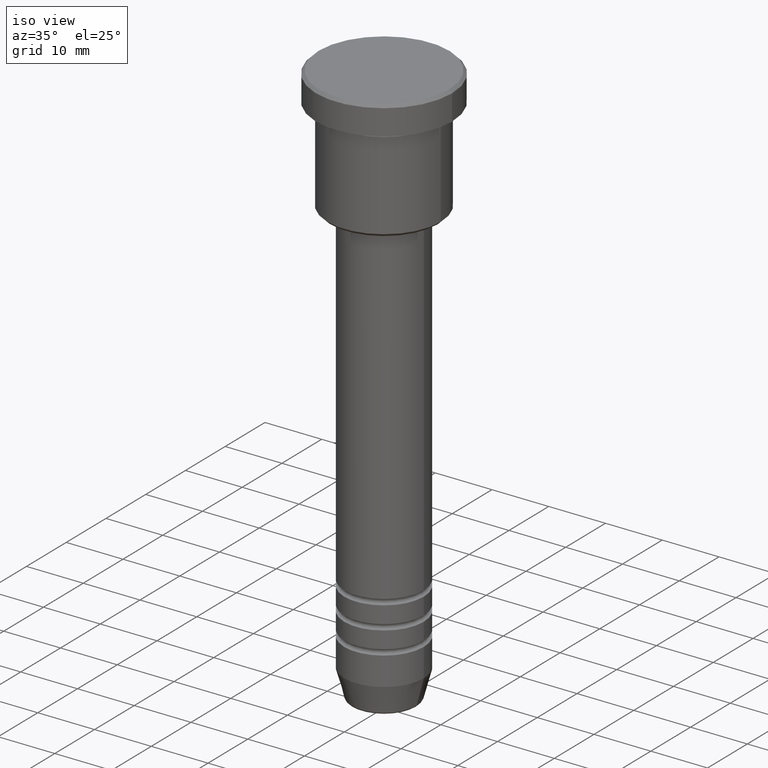
[diagram: clean part render]
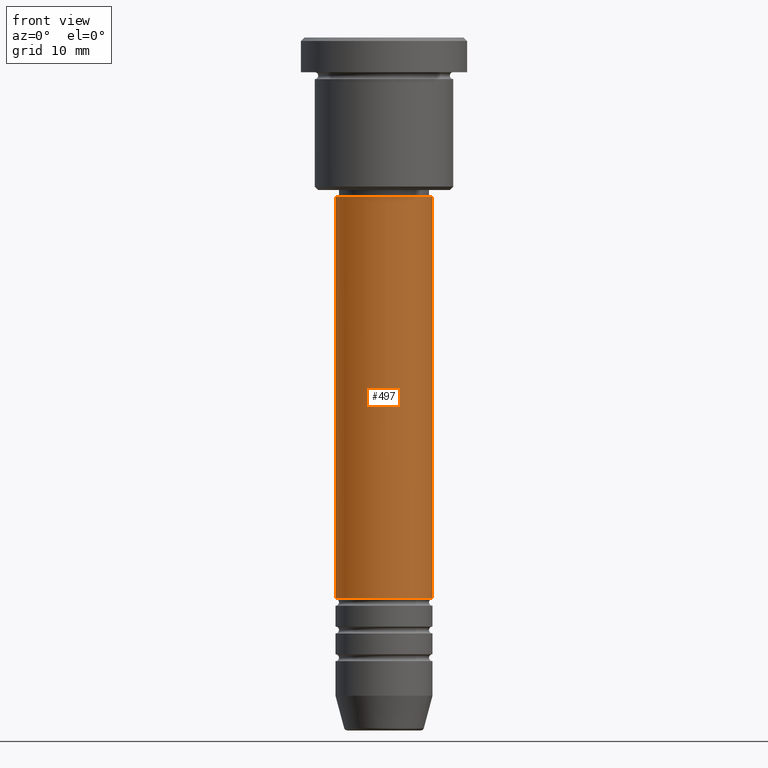
[diagram: tour spotlight — one face highlighted and labeled with its STEP entity id]
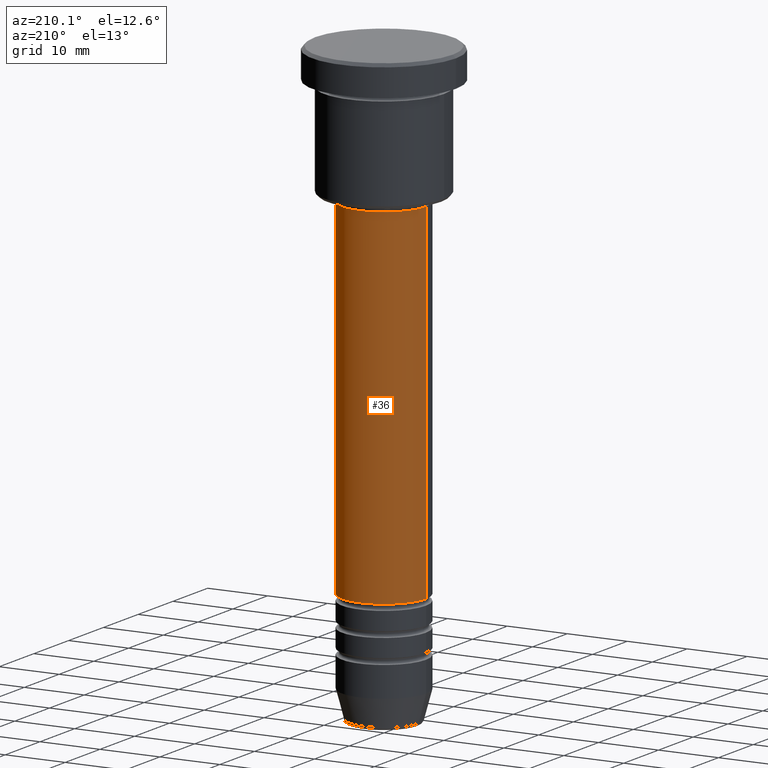
[diagram: tour spotlight — one face highlighted and labeled with its STEP entity id]
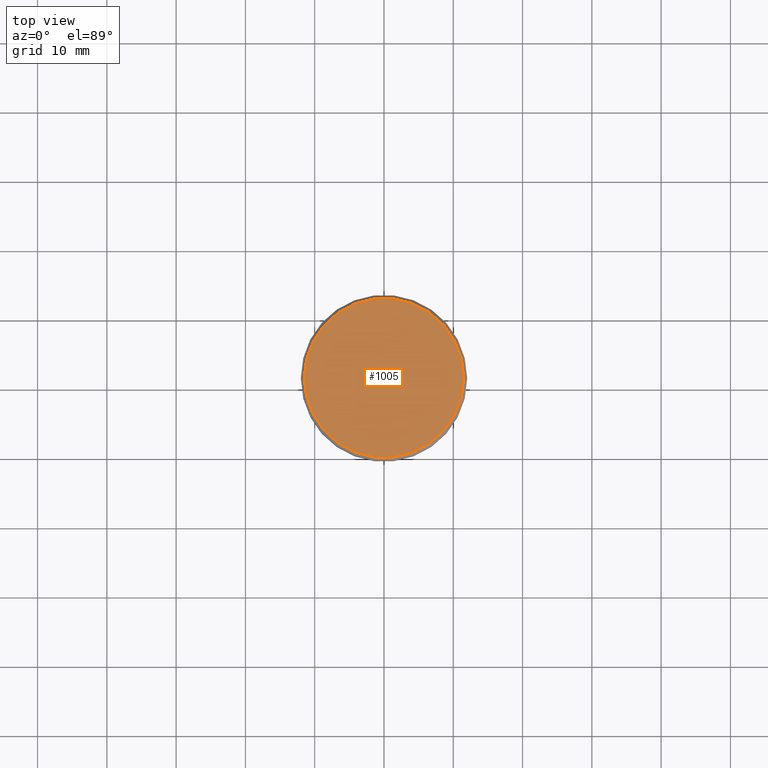
[diagram: tour spotlight — one face highlighted and labeled with its STEP entity id]
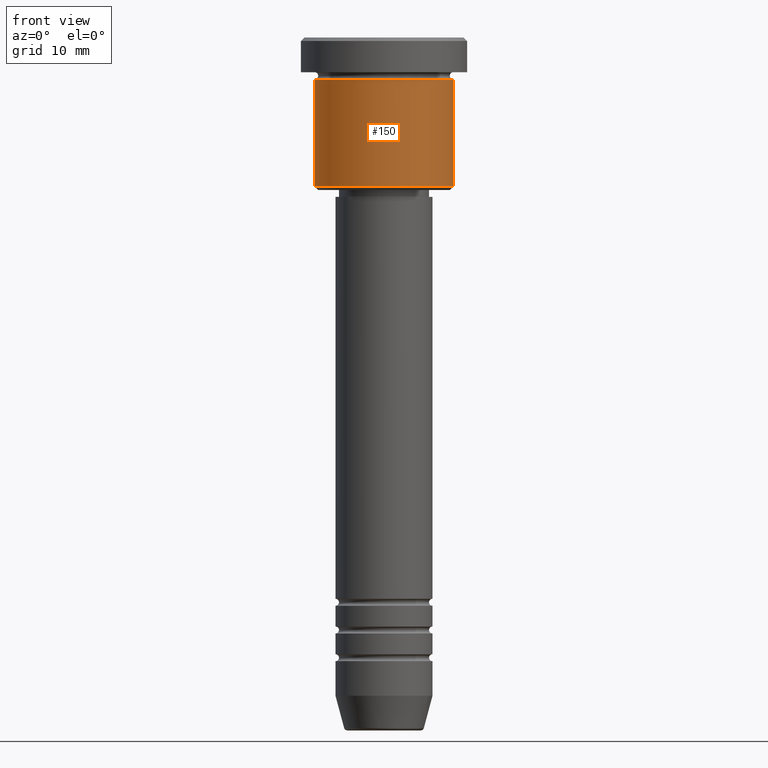
[diagram: tour spotlight — one face highlighted and labeled with its STEP entity id]
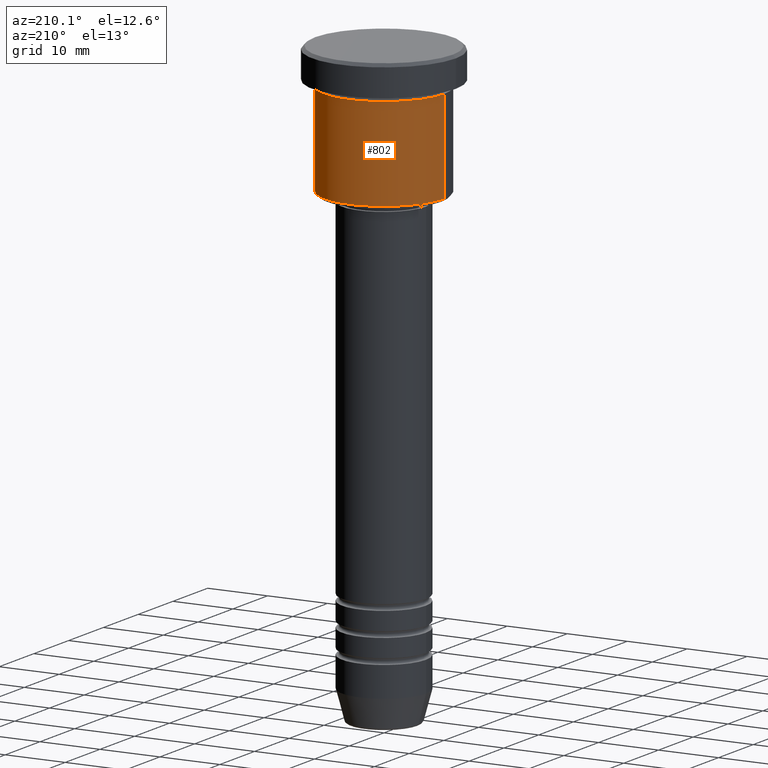
[diagram: tour spotlight — one face highlighted and labeled with its STEP entity id]
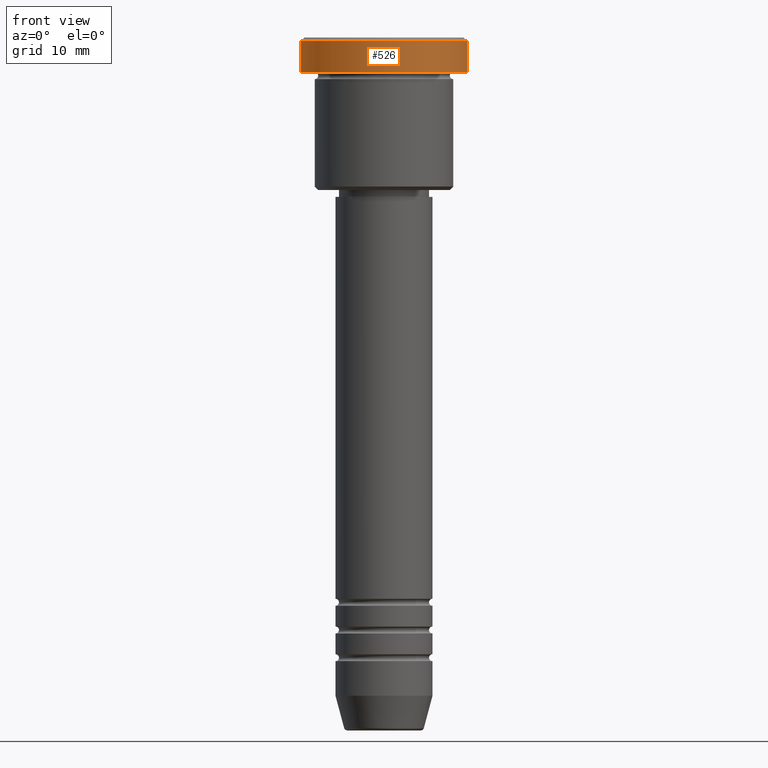
[diagram: tour spotlight — one face highlighted and labeled with its STEP entity id]
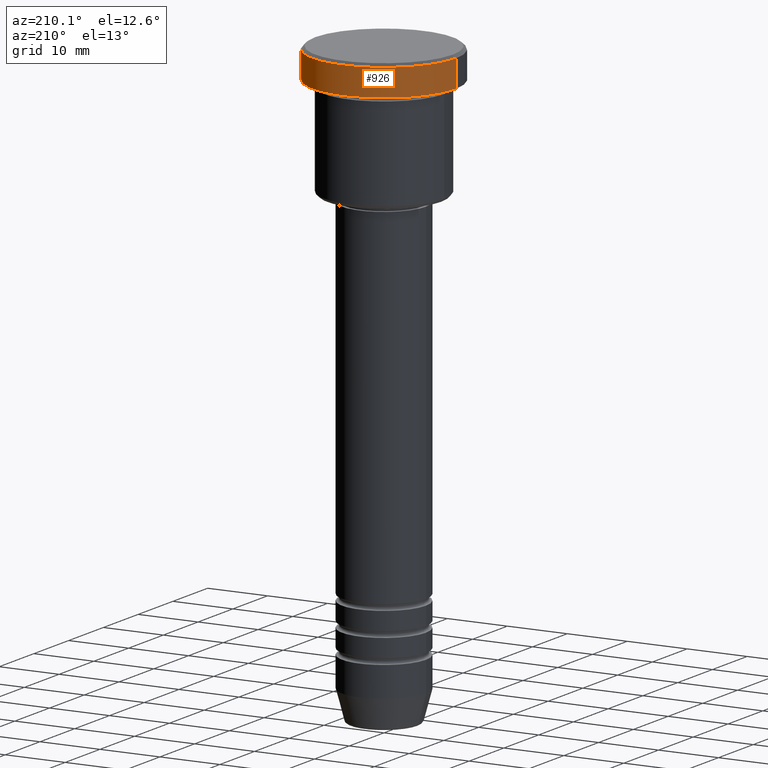
[diagram: tour spotlight — one face highlighted and labeled with its STEP entity id]
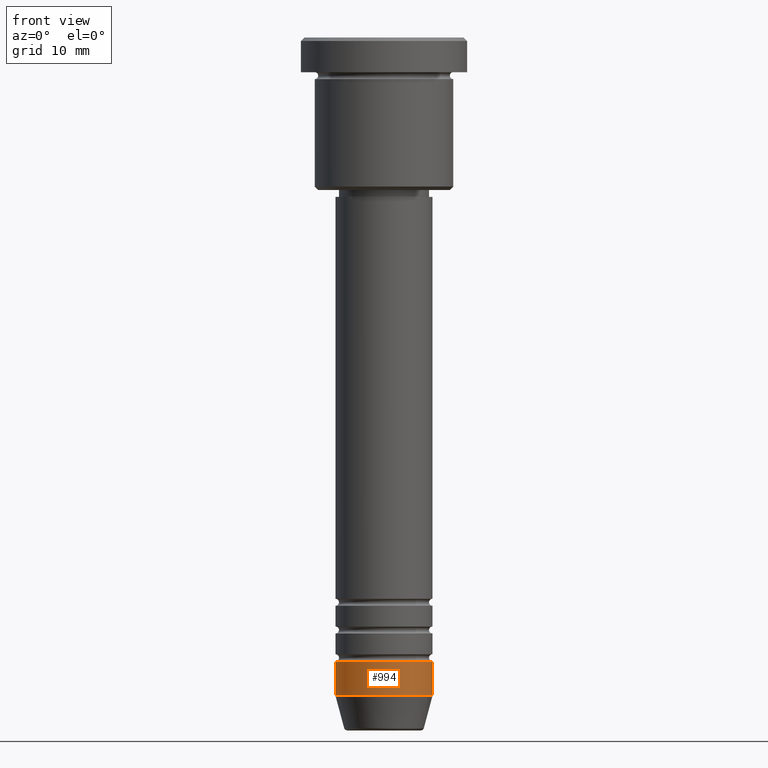
[diagram: tour spotlight — one face highlighted and labeled with its STEP entity id]
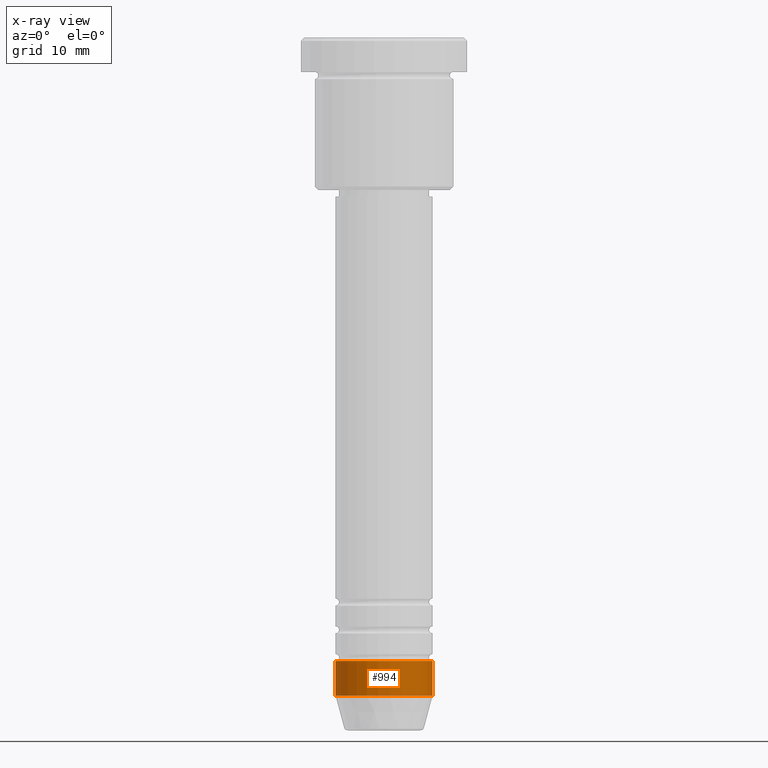
[diagram: x-ray of the same camera — body ghosted, this tour face saturated]
A machine part: a face-by-face anatomy tour. The part has 43 B-rep faces; the first image is the clean iso view, then the 8 largest visible faces are spotlighted one at a time (largest first), each with its STEP entity span.

Face 1 — front view, entity #497. In plain terms, the highlighted cylindrical surface (partial cylindrical patch) has radius 7 mm, axis along (-0, -0, 1).
Definition (entity closure, byte-faithful):
#47 = DIRECTION ( 'NONE',  ( -0.000000000000000000, -0.000000000000000000, 1.000000000000000000 ) ) ;
#168 = DIRECTION ( 'NONE',  ( 1.000000000000000000, 0.000000000000000000, 0.000000000000000000 ) ) ;
#188 = VERTEX_POINT ( 'NONE', #930 ) ;
#213 = VERTEX_POINT ( 'NONE', #629 ) ;
#235 = CARTESIAN_POINT ( 'NONE',  ( 0.000000000000000000, 0.000000000000000000, 0.000000000000000000 ) ) ;
#241 = AXIS2_PLACEMENT_3D ( 'NONE', #359, #548, #168 ) ;
#304 = EDGE_LOOP ( 'NONE', ( #1108, #928, #671, #897 ) ) ;
#332 = DIRECTION ( 'NONE',  ( 1.000000000000000000, 0.000000000000000000, 0.000000000000000000 ) ) ;
#351 = DIRECTION ( 'NONE',  ( -0.000000000000000000, -0.000000000000000000, 1.000000000000000000 ) ) ;
#359 = CARTESIAN_POINT ( 'NONE',  ( 0.000000000000000000, 0.000000000000000000, -80.99999999999998579 ) ) ;
#421 = CARTESIAN_POINT ( 'NONE',  ( 7.000000000000000888, 0.000000000000000000, 0.000000000000000000 ) ) ;
#425 = LINE ( 'NONE', #421, #695 ) ;
#427 = CIRCLE ( 'NONE', #755, 7.000000000000000888 ) ;
#457 = EDGE_CURVE ( 'NONE', #485, #600, #425, .T. ) ;
#485 = VERTEX_POINT ( 'NONE', #972 ) ;
#492 = EDGE_CURVE ( 'NONE', #188, #600, #427, .T. ) ;
#497 = ADVANCED_FACE ( 'NONE', ( #705 ), #514, .T. ) ;
#514 = CYLINDRICAL_SURFACE ( 'NONE', #736, 7.000000000000000888 ) ;
#544 = EDGE_CURVE ( 'NONE', #213, #188, #612, .T. ) ;
#548 = DIRECTION ( 'NONE',  ( -0.000000000000000000, -0.000000000000000000, 1.000000000000000000 ) ) ;
#600 = VERTEX_POINT ( 'NONE', #1064 ) ;
#601 = CIRCLE ( 'NONE', #241, 7.000000000000000888 ) ;
#608 = DIRECTION ( 'NONE',  ( -0.000000000000000000, -0.000000000000000000, 1.000000000000000000 ) ) ;
#612 = LINE ( 'NONE', #1059, #1130 ) ;
#629 = CARTESIAN_POINT ( 'NONE',  ( -7.000000000000000888, 8.572527594031474176E-16, -80.99999999999998579 ) ) ;
#654 = EDGE_CURVE ( 'NONE', #213, #485, #601, .T. ) ;
#671 = ORIENTED_EDGE ( 'NONE', *, *, #457, .T. ) ;
#695 = VECTOR ( 'NONE', #351, 1000.000000000000000 ) ;
#705 = FACE_OUTER_BOUND ( 'NONE', #304, .T. ) ;
#736 = AXIS2_PLACEMENT_3D ( 'NONE', #235, #608, #875 ) ;
#755 = AXIS2_PLACEMENT_3D ( 'NONE', #788, #47, #332 ) ;
#788 = CARTESIAN_POINT ( 'NONE',  ( 0.000000000000000000, 0.000000000000000000, -23.00000000000000711 ) ) ;
#875 = DIRECTION ( 'NONE',  ( 1.000000000000000000, 0.000000000000000000, 0.000000000000000000 ) ) ;
#897 = ORIENTED_EDGE ( 'NONE', *, *, #492, .F. ) ;
#928 = ORIENTED_EDGE ( 'NONE', *, *, #654, .T. ) ;
#930 = CARTESIAN_POINT ( 'NONE',  ( -7.000000000000000888, 8.572527594031474176E-16, -23.00000000000000711 ) ) ;
#972 = CARTESIAN_POINT ( 'NONE',  ( 7.000000000000000888, 0.000000000000000000, -80.99999999999998579 ) ) ;
#1055 = DIRECTION ( 'NONE',  ( -0.000000000000000000, -0.000000000000000000, 1.000000000000000000 ) ) ;
#1059 = CARTESIAN_POINT ( 'NONE',  ( -7.000000000000000888, 8.572527594031474176E-16, 0.000000000000000000 ) ) ;
#1064 = CARTESIAN_POINT ( 'NONE',  ( 7.000000000000000888, 0.000000000000000000, -23.00000000000000711 ) ) ;
#1108 = ORIENTED_EDGE ( 'NONE', *, *, #544, .F. ) ;
#1130 = VECTOR ( 'NONE', #1055, 1000.000000000000000 ) ;

Face 2 — auxiliary view, entity #36. In plain terms, the highlighted cylindrical surface (partial cylindrical patch) has radius 7 mm, axis along (-0, -0, 1).
Definition (entity closure, byte-faithful):
#16 = ORIENTED_EDGE ( 'NONE', *, *, #544, .T. ) ;
#36 = ADVANCED_FACE ( 'NONE', ( #155 ), #170, .T. ) ;
#121 = EDGE_LOOP ( 'NONE', ( #868, #16, #699, #291 ) ) ;
#155 = FACE_OUTER_BOUND ( 'NONE', #121, .T. ) ;
#170 = CYLINDRICAL_SURFACE ( 'NONE', #1015, 7.000000000000000888 ) ;
#173 = DIRECTION ( 'NONE',  ( 1.000000000000000000, 0.000000000000000000, 0.000000000000000000 ) ) ;
#188 = VERTEX_POINT ( 'NONE', #930 ) ;
#213 = VERTEX_POINT ( 'NONE', #629 ) ;
#291 = ORIENTED_EDGE ( 'NONE', *, *, #457, .F. ) ;
#346 = EDGE_CURVE ( 'NONE', #485, #213, #790, .T. ) ;
#351 = DIRECTION ( 'NONE',  ( -0.000000000000000000, -0.000000000000000000, 1.000000000000000000 ) ) ;
#352 = CARTESIAN_POINT ( 'NONE',  ( 0.000000000000000000, 0.000000000000000000, 0.000000000000000000 ) ) ;
#421 = CARTESIAN_POINT ( 'NONE',  ( 7.000000000000000888, 0.000000000000000000, 0.000000000000000000 ) ) ;
#425 = LINE ( 'NONE', #421, #695 ) ;
#457 = EDGE_CURVE ( 'NONE', #485, #600, #425, .T. ) ;
#485 = VERTEX_POINT ( 'NONE', #972 ) ;
#544 = EDGE_CURVE ( 'NONE', #213, #188, #612, .T. ) ;
#600 = VERTEX_POINT ( 'NONE', #1064 ) ;
#612 = LINE ( 'NONE', #1059, #1130 ) ;
#617 = DIRECTION ( 'NONE',  ( -0.000000000000000000, -0.000000000000000000, 1.000000000000000000 ) ) ;
#628 = DIRECTION ( 'NONE',  ( -0.000000000000000000, -0.000000000000000000, 1.000000000000000000 ) ) ;
#629 = CARTESIAN_POINT ( 'NONE',  ( -7.000000000000000888, 8.572527594031474176E-16, -80.99999999999998579 ) ) ;
#684 = DIRECTION ( 'NONE',  ( -0.000000000000000000, -0.000000000000000000, 1.000000000000000000 ) ) ;
#695 = VECTOR ( 'NONE', #351, 1000.000000000000000 ) ;
#696 = AXIS2_PLACEMENT_3D ( 'NONE', #1166, #628, #173 ) ;
#699 = ORIENTED_EDGE ( 'NONE', *, *, #740, .F. ) ;
#740 = EDGE_CURVE ( 'NONE', #600, #188, #1114, .T. ) ;
#766 = DIRECTION ( 'NONE',  ( 1.000000000000000000, 0.000000000000000000, 0.000000000000000000 ) ) ;
#770 = CARTESIAN_POINT ( 'NONE',  ( 0.000000000000000000, 0.000000000000000000, -80.99999999999998579 ) ) ;
#790 = CIRCLE ( 'NONE', #888, 7.000000000000000888 ) ;
#868 = ORIENTED_EDGE ( 'NONE', *, *, #346, .T. ) ;
#888 = AXIS2_PLACEMENT_3D ( 'NONE', #770, #684, #1031 ) ;
#930 = CARTESIAN_POINT ( 'NONE',  ( -7.000000000000000888, 8.572527594031474176E-16, -23.00000000000000711 ) ) ;
#972 = CARTESIAN_POINT ( 'NONE',  ( 7.000000000000000888, 0.000000000000000000, -80.99999999999998579 ) ) ;
#1015 = AXIS2_PLACEMENT_3D ( 'NONE', #352, #617, #766 ) ;
#1031 = DIRECTION ( 'NONE',  ( 1.000000000000000000, 0.000000000000000000, 0.000000000000000000 ) ) ;
#1055 = DIRECTION ( 'NONE',  ( -0.000000000000000000, -0.000000000000000000, 1.000000000000000000 ) ) ;
#1059 = CARTESIAN_POINT ( 'NONE',  ( -7.000000000000000888, 8.572527594031474176E-16, 0.000000000000000000 ) ) ;
#1064 = CARTESIAN_POINT ( 'NONE',  ( 7.000000000000000888, 0.000000000000000000, -23.00000000000000711 ) ) ;
#1114 = CIRCLE ( 'NONE', #696, 7.000000000000000888 ) ;
#1130 = VECTOR ( 'NONE', #1055, 1000.000000000000000 ) ;
#1166 = CARTESIAN_POINT ( 'NONE',  ( 0.000000000000000000, 0.000000000000000000, -23.00000000000000711 ) ) ;

Face 3 — top view, entity #1005. In plain terms, the highlighted planar face has unit normal (0, -0, 1).
Definition (entity closure, byte-faithful):
#17 = CARTESIAN_POINT ( 'NONE',  ( -11.49999999999998046, 0.000000000000000000, 0.000000000000000000 ) ) ;
#26 = ORIENTED_EDGE ( 'NONE', *, *, #474, .T. ) ;
#43 = CIRCLE ( 'NONE', #80, 11.49999999999998046 ) ;
#66 = CARTESIAN_POINT ( 'NONE',  ( 0.000000000000000000, 0.000000000000000000, 0.000000000000000000 ) ) ;
#80 = AXIS2_PLACEMENT_3D ( 'NONE', #1008, #1099, #642 ) ;
#238 = DIRECTION ( 'NONE',  ( 1.000000000000000000, 0.000000000000000000, 0.000000000000000000 ) ) ;
#239 = DIRECTION ( 'NONE',  ( 1.000000000000000000, 0.000000000000000000, 0.000000000000000000 ) ) ;
#300 = AXIS2_PLACEMENT_3D ( 'NONE', #66, #1048, #239 ) ;
#416 = FACE_OUTER_BOUND ( 'NONE', #513, .T. ) ;
#474 = EDGE_CURVE ( 'NONE', #650, #1181, #677, .T. ) ;
#513 = EDGE_LOOP ( 'NONE', ( #704, #26 ) ) ;
#596 = CARTESIAN_POINT ( 'NONE',  ( 0.000000000000000000, 0.000000000000000000, 0.000000000000000000 ) ) ;
#610 = DIRECTION ( 'NONE',  ( 0.000000000000000000, -0.000000000000000000, 1.000000000000000000 ) ) ;
#642 = DIRECTION ( 'NONE',  ( 1.000000000000000000, 0.000000000000000000, 0.000000000000000000 ) ) ;
#650 = VERTEX_POINT ( 'NONE', #995 ) ;
#677 = CIRCLE ( 'NONE', #300, 11.49999999999998046 ) ;
#704 = ORIENTED_EDGE ( 'NONE', *, *, #717, .T. ) ;
#717 = EDGE_CURVE ( 'NONE', #1181, #650, #43, .T. ) ;
#718 = AXIS2_PLACEMENT_3D ( 'NONE', #596, #610, #238 ) ;
#779 = PLANE ( 'NONE',  #718 ) ;
#995 = CARTESIAN_POINT ( 'NONE',  ( 11.49999999999998046, 1.438959988998138582E-15, 0.000000000000000000 ) ) ;
#1005 = ADVANCED_FACE ( 'NONE', ( #416 ), #779, .T. ) ;
#1008 = CARTESIAN_POINT ( 'NONE',  ( 0.000000000000000000, 0.000000000000000000, 0.000000000000000000 ) ) ;
#1048 = DIRECTION ( 'NONE',  ( -0.000000000000000000, -0.000000000000000000, 1.000000000000000000 ) ) ;
#1099 = DIRECTION ( 'NONE',  ( -0.000000000000000000, -0.000000000000000000, 1.000000000000000000 ) ) ;
#1181 = VERTEX_POINT ( 'NONE', #17 ) ;

Face 4 — front view, entity #150. In plain terms, the highlighted cylindrical surface (partial cylindrical patch) has radius 10 mm, axis along (-0, -0, 1).
Definition (entity closure, byte-faithful):
#2 = CARTESIAN_POINT ( 'NONE',  ( 0.000000000000000000, 0.000000000000000000, -6.000000000000000000 ) ) ;
#68 = CARTESIAN_POINT ( 'NONE',  ( -10.00000000000000000, 1.224646799147353256E-15, -6.000000000000000000 ) ) ;
#73 = LINE ( 'NONE', #820, #499 ) ;
#81 = CARTESIAN_POINT ( 'NONE',  ( 0.000000000000000000, 0.000000000000000000, 0.000000000000000000 ) ) ;
#82 = VECTOR ( 'NONE', #172, 1000.000000000000000 ) ;
#103 = VERTEX_POINT ( 'NONE', #68 ) ;
#108 = DIRECTION ( 'NONE',  ( -1.000000000000000000, 0.000000000000000000, 0.000000000000000000 ) ) ;
#118 = CARTESIAN_POINT ( 'NONE',  ( 9.999999999999998224, 0.000000000000000000, -21.50000000000000000 ) ) ;
#141 = AXIS2_PLACEMENT_3D ( 'NONE', #648, #1009, #108 ) ;
#150 = ADVANCED_FACE ( 'NONE', ( #442 ), #643, .T. ) ;
#157 = EDGE_CURVE ( 'NONE', #800, #724, #73, .T. ) ;
#172 = DIRECTION ( 'NONE',  ( -0.000000000000000000, -0.000000000000000000, 1.000000000000000000 ) ) ;
#189 = CARTESIAN_POINT ( 'NONE',  ( 10.00000000000000000, 0.000000000000000000, -6.000000000000000000 ) ) ;
#190 = DIRECTION ( 'NONE',  ( -0.000000000000000000, -0.000000000000000000, 1.000000000000000000 ) ) ;
#207 = ORIENTED_EDGE ( 'NONE', *, *, #1141, .F. ) ;
#263 = ORIENTED_EDGE ( 'NONE', *, *, #273, .F. ) ;
#273 = EDGE_CURVE ( 'NONE', #103, #724, #482, .T. ) ;
#278 = EDGE_CURVE ( 'NONE', #808, #800, #976, .T. ) ;
#299 = AXIS2_PLACEMENT_3D ( 'NONE', #2, #824, #381 ) ;
#325 = ORIENTED_EDGE ( 'NONE', *, *, #278, .T. ) ;
#381 = DIRECTION ( 'NONE',  ( 1.000000000000000000, 0.000000000000000000, 0.000000000000000000 ) ) ;
#440 = LINE ( 'NONE', #809, #82 ) ;
#442 = FACE_OUTER_BOUND ( 'NONE', #523, .T. ) ;
#451 = DIRECTION ( 'NONE',  ( -0.000000000000000000, -0.000000000000000000, 1.000000000000000000 ) ) ;
#482 = CIRCLE ( 'NONE', #299, 10.00000000000000000 ) ;
#499 = VECTOR ( 'NONE', #190, 1000.000000000000000 ) ;
#523 = EDGE_LOOP ( 'NONE', ( #207, #325, #545, #263 ) ) ;
#545 = ORIENTED_EDGE ( 'NONE', *, *, #157, .T. ) ;
#643 = CYLINDRICAL_SURFACE ( 'NONE', #1068, 9.999999999999998224 ) ;
#648 = CARTESIAN_POINT ( 'NONE',  ( 0.000000000000000000, 0.000000000000000000, -21.50000000000000000 ) ) ;
#724 = VERTEX_POINT ( 'NONE', #189 ) ;
#800 = VERTEX_POINT ( 'NONE', #118 ) ;
#808 = VERTEX_POINT ( 'NONE', #1022 ) ;
#809 = CARTESIAN_POINT ( 'NONE',  ( -9.999999999999998224, 1.224646799147353059E-15, 0.000000000000000000 ) ) ;
#820 = CARTESIAN_POINT ( 'NONE',  ( 9.999999999999998224, 0.000000000000000000, 0.000000000000000000 ) ) ;
#824 = DIRECTION ( 'NONE',  ( -0.000000000000000000, -0.000000000000000000, 1.000000000000000000 ) ) ;
#976 = CIRCLE ( 'NONE', #141, 9.999999999999998224 ) ;
#1003 = DIRECTION ( 'NONE',  ( 1.000000000000000000, 0.000000000000000000, 0.000000000000000000 ) ) ;
#1009 = DIRECTION ( 'NONE',  ( -0.000000000000000000, -0.000000000000000000, 1.000000000000000000 ) ) ;
#1022 = CARTESIAN_POINT ( 'NONE',  ( -9.999999999999998224, 1.224646799147353059E-15, -21.50000000000000000 ) ) ;
#1068 = AXIS2_PLACEMENT_3D ( 'NONE', #81, #451, #1003 ) ;
#1141 = EDGE_CURVE ( 'NONE', #808, #103, #440, .T. ) ;

Face 5 — auxiliary view, entity #802. In plain terms, the highlighted cylindrical surface (partial cylindrical patch) has radius 10 mm, axis along (-0, -0, 1).
Definition (entity closure, byte-faithful):
#68 = CARTESIAN_POINT ( 'NONE',  ( -10.00000000000000000, 1.224646799147353256E-15, -6.000000000000000000 ) ) ;
#73 = LINE ( 'NONE', #820, #499 ) ;
#82 = VECTOR ( 'NONE', #172, 1000.000000000000000 ) ;
#83 = EDGE_CURVE ( 'NONE', #800, #808, #1145, .T. ) ;
#103 = VERTEX_POINT ( 'NONE', #68 ) ;
#118 = CARTESIAN_POINT ( 'NONE',  ( 9.999999999999998224, 0.000000000000000000, -21.50000000000000000 ) ) ;
#157 = EDGE_CURVE ( 'NONE', #800, #724, #73, .T. ) ;
#172 = DIRECTION ( 'NONE',  ( -0.000000000000000000, -0.000000000000000000, 1.000000000000000000 ) ) ;
#179 = ORIENTED_EDGE ( 'NONE', *, *, #157, .F. ) ;
#189 = CARTESIAN_POINT ( 'NONE',  ( 10.00000000000000000, 0.000000000000000000, -6.000000000000000000 ) ) ;
#190 = DIRECTION ( 'NONE',  ( -0.000000000000000000, -0.000000000000000000, 1.000000000000000000 ) ) ;
#198 = EDGE_CURVE ( 'NONE', #724, #103, #515, .T. ) ;
#226 = DIRECTION ( 'NONE',  ( -1.000000000000000000, 0.000000000000000000, 0.000000000000000000 ) ) ;
#270 = DIRECTION ( 'NONE',  ( 1.000000000000000000, 0.000000000000000000, 0.000000000000000000 ) ) ;
#314 = CARTESIAN_POINT ( 'NONE',  ( 0.000000000000000000, 0.000000000000000000, -21.50000000000000000 ) ) ;
#440 = LINE ( 'NONE', #809, #82 ) ;
#465 = AXIS2_PLACEMENT_3D ( 'NONE', #950, #493, #472 ) ;
#472 = DIRECTION ( 'NONE',  ( 1.000000000000000000, 0.000000000000000000, 0.000000000000000000 ) ) ;
#493 = DIRECTION ( 'NONE',  ( -0.000000000000000000, -0.000000000000000000, 1.000000000000000000 ) ) ;
#499 = VECTOR ( 'NONE', #190, 1000.000000000000000 ) ;
#515 = CIRCLE ( 'NONE', #616, 10.00000000000000000 ) ;
#613 = EDGE_LOOP ( 'NONE', ( #639, #838, #656, #179 ) ) ;
#616 = AXIS2_PLACEMENT_3D ( 'NONE', #733, #1169, #270 ) ;
#639 = ORIENTED_EDGE ( 'NONE', *, *, #83, .T. ) ;
#656 = ORIENTED_EDGE ( 'NONE', *, *, #198, .F. ) ;
#661 = FACE_OUTER_BOUND ( 'NONE', #613, .T. ) ;
#692 = AXIS2_PLACEMENT_3D ( 'NONE', #314, #1131, #226 ) ;
#724 = VERTEX_POINT ( 'NONE', #189 ) ;
#733 = CARTESIAN_POINT ( 'NONE',  ( 0.000000000000000000, 0.000000000000000000, -6.000000000000000000 ) ) ;
#800 = VERTEX_POINT ( 'NONE', #118 ) ;
#802 = ADVANCED_FACE ( 'NONE', ( #661 ), #1123, .T. ) ;
#808 = VERTEX_POINT ( 'NONE', #1022 ) ;
#809 = CARTESIAN_POINT ( 'NONE',  ( -9.999999999999998224, 1.224646799147353059E-15, 0.000000000000000000 ) ) ;
#820 = CARTESIAN_POINT ( 'NONE',  ( 9.999999999999998224, 0.000000000000000000, 0.000000000000000000 ) ) ;
#838 = ORIENTED_EDGE ( 'NONE', *, *, #1141, .T. ) ;
#950 = CARTESIAN_POINT ( 'NONE',  ( 0.000000000000000000, 0.000000000000000000, 0.000000000000000000 ) ) ;
#1022 = CARTESIAN_POINT ( 'NONE',  ( -9.999999999999998224, 1.224646799147353059E-15, -21.50000000000000000 ) ) ;
#1123 = CYLINDRICAL_SURFACE ( 'NONE', #465, 9.999999999999998224 ) ;
#1131 = DIRECTION ( 'NONE',  ( -0.000000000000000000, -0.000000000000000000, 1.000000000000000000 ) ) ;
#1141 = EDGE_CURVE ( 'NONE', #808, #103, #440, .T. ) ;
#1145 = CIRCLE ( 'NONE', #692, 9.999999999999998224 ) ;
#1169 = DIRECTION ( 'NONE',  ( -0.000000000000000000, -0.000000000000000000, 1.000000000000000000 ) ) ;

Face 6 — front view, entity #526. In plain terms, the highlighted cylindrical surface (partial cylindrical patch) has radius 12 mm, axis along (-0, -0, 1).
Definition (entity closure, byte-faithful):
#40 = VECTOR ( 'NONE', #969, 1000.000000000000000 ) ;
#57 = DIRECTION ( 'NONE',  ( 0.000000000000000000, 0.000000000000000000, -1.000000000000000000 ) ) ;
#65 = EDGE_CURVE ( 'NONE', #804, #635, #892, .T. ) ;
#76 = VECTOR ( 'NONE', #1125, 1000.000000000000000 ) ;
#140 = CARTESIAN_POINT ( 'NONE',  ( 0.000000000000000000, 0.000000000000000000, 0.000000000000000000 ) ) ;
#180 = CIRCLE ( 'NONE', #678, 12.00000000000000000 ) ;
#181 = CARTESIAN_POINT ( 'NONE',  ( 0.000000000000000000, 0.000000000000000000, -5.000000000000000000 ) ) ;
#247 = LINE ( 'NONE', #798, #40 ) ;
#281 = DIRECTION ( 'NONE',  ( -0.000000000000000000, -0.000000000000000000, 1.000000000000000000 ) ) ;
#310 = VERTEX_POINT ( 'NONE', #1119 ) ;
#320 = ORIENTED_EDGE ( 'NONE', *, *, #597, .F. ) ;
#322 = AXIS2_PLACEMENT_3D ( 'NONE', #409, #57, #898 ) ;
#378 = CARTESIAN_POINT ( 'NONE',  ( 12.00000000000000000, 0.000000000000000000, -0.5000000000000196509 ) ) ;
#409 = CARTESIAN_POINT ( 'NONE',  ( 0.000000000000000000, 0.000000000000000000, -0.5000000000000196509 ) ) ;
#419 = DIRECTION ( 'NONE',  ( -0.000000000000000000, -0.000000000000000000, 1.000000000000000000 ) ) ;
#469 = ORIENTED_EDGE ( 'NONE', *, *, #957, .T. ) ;
#510 = FACE_OUTER_BOUND ( 'NONE', #586, .T. ) ;
#526 = ADVANCED_FACE ( 'NONE', ( #510 ), #961, .T. ) ;
#527 = CARTESIAN_POINT ( 'NONE',  ( 12.00000000000000000, 0.000000000000000000, 0.000000000000000000 ) ) ;
#571 = CARTESIAN_POINT ( 'NONE',  ( -12.00000000000000000, 1.469576158976823947E-15, -0.5000000000000196509 ) ) ;
#586 = EDGE_LOOP ( 'NONE', ( #320, #954, #659, #469 ) ) ;
#597 = EDGE_CURVE ( 'NONE', #310, #797, #247, .T. ) ;
#635 = VERTEX_POINT ( 'NONE', #378 ) ;
#659 = ORIENTED_EDGE ( 'NONE', *, *, #65, .T. ) ;
#678 = AXIS2_PLACEMENT_3D ( 'NONE', #181, #281, #923 ) ;
#687 = EDGE_CURVE ( 'NONE', #310, #804, #180, .T. ) ;
#689 = DIRECTION ( 'NONE',  ( 1.000000000000000000, 0.000000000000000000, 0.000000000000000000 ) ) ;
#797 = VERTEX_POINT ( 'NONE', #571 ) ;
#798 = CARTESIAN_POINT ( 'NONE',  ( -12.00000000000000000, 1.469576158976823947E-15, 0.000000000000000000 ) ) ;
#804 = VERTEX_POINT ( 'NONE', #943 ) ;
#853 = AXIS2_PLACEMENT_3D ( 'NONE', #140, #419, #689 ) ;
#892 = LINE ( 'NONE', #527, #76 ) ;
#898 = DIRECTION ( 'NONE',  ( 1.000000000000000000, 0.000000000000000000, 0.000000000000000000 ) ) ;
#923 = DIRECTION ( 'NONE',  ( 1.000000000000000000, 0.000000000000000000, 0.000000000000000000 ) ) ;
#943 = CARTESIAN_POINT ( 'NONE',  ( 12.00000000000000000, 0.000000000000000000, -5.000000000000000000 ) ) ;
#954 = ORIENTED_EDGE ( 'NONE', *, *, #687, .T. ) ;
#957 = EDGE_CURVE ( 'NONE', #635, #797, #1017, .T. ) ;
#961 = CYLINDRICAL_SURFACE ( 'NONE', #853, 12.00000000000000000 ) ;
#969 = DIRECTION ( 'NONE',  ( -0.000000000000000000, -0.000000000000000000, 1.000000000000000000 ) ) ;
#1017 = CIRCLE ( 'NONE', #322, 12.00000000000000000 ) ;
#1119 = CARTESIAN_POINT ( 'NONE',  ( -12.00000000000000000, 1.469576158976823947E-15, -5.000000000000000000 ) ) ;
#1125 = DIRECTION ( 'NONE',  ( -0.000000000000000000, -0.000000000000000000, 1.000000000000000000 ) ) ;

Face 7 — auxiliary view, entity #926. In plain terms, the highlighted cylindrical surface (partial cylindrical patch) has radius 12 mm, axis along (-0, -0, 1).
Definition (entity closure, byte-faithful):
#3 = AXIS2_PLACEMENT_3D ( 'NONE', #975, #968, #160 ) ;
#4 = AXIS2_PLACEMENT_3D ( 'NONE', #420, #782, #886 ) ;
#40 = VECTOR ( 'NONE', #969, 1000.000000000000000 ) ;
#45 = DIRECTION ( 'NONE',  ( 1.000000000000000000, 0.000000000000000000, 0.000000000000000000 ) ) ;
#51 = DIRECTION ( 'NONE',  ( -0.000000000000000000, -0.000000000000000000, 1.000000000000000000 ) ) ;
#65 = EDGE_CURVE ( 'NONE', #804, #635, #892, .T. ) ;
#76 = VECTOR ( 'NONE', #1125, 1000.000000000000000 ) ;
#89 = EDGE_LOOP ( 'NONE', ( #456, #109, #726, #117 ) ) ;
#109 = ORIENTED_EDGE ( 'NONE', *, *, #597, .T. ) ;
#117 = ORIENTED_EDGE ( 'NONE', *, *, #65, .F. ) ;
#160 = DIRECTION ( 'NONE',  ( 1.000000000000000000, 0.000000000000000000, 0.000000000000000000 ) ) ;
#247 = LINE ( 'NONE', #798, #40 ) ;
#310 = VERTEX_POINT ( 'NONE', #1119 ) ;
#378 = CARTESIAN_POINT ( 'NONE',  ( 12.00000000000000000, 0.000000000000000000, -0.5000000000000196509 ) ) ;
#420 = CARTESIAN_POINT ( 'NONE',  ( 0.000000000000000000, 0.000000000000000000, -0.5000000000000196509 ) ) ;
#456 = ORIENTED_EDGE ( 'NONE', *, *, #952, .T. ) ;
#509 = CARTESIAN_POINT ( 'NONE',  ( 0.000000000000000000, 0.000000000000000000, 0.000000000000000000 ) ) ;
#518 = CIRCLE ( 'NONE', #3, 12.00000000000000000 ) ;
#520 = CYLINDRICAL_SURFACE ( 'NONE', #949, 12.00000000000000000 ) ;
#527 = CARTESIAN_POINT ( 'NONE',  ( 12.00000000000000000, 0.000000000000000000, 0.000000000000000000 ) ) ;
#571 = CARTESIAN_POINT ( 'NONE',  ( -12.00000000000000000, 1.469576158976823947E-15, -0.5000000000000196509 ) ) ;
#597 = EDGE_CURVE ( 'NONE', #310, #797, #247, .T. ) ;
#635 = VERTEX_POINT ( 'NONE', #378 ) ;
#726 = ORIENTED_EDGE ( 'NONE', *, *, #1029, .T. ) ;
#741 = CIRCLE ( 'NONE', #4, 12.00000000000000000 ) ;
#782 = DIRECTION ( 'NONE',  ( 0.000000000000000000, 0.000000000000000000, -1.000000000000000000 ) ) ;
#797 = VERTEX_POINT ( 'NONE', #571 ) ;
#798 = CARTESIAN_POINT ( 'NONE',  ( -12.00000000000000000, 1.469576158976823947E-15, 0.000000000000000000 ) ) ;
#804 = VERTEX_POINT ( 'NONE', #943 ) ;
#871 = FACE_OUTER_BOUND ( 'NONE', #89, .T. ) ;
#886 = DIRECTION ( 'NONE',  ( 1.000000000000000000, 0.000000000000000000, 0.000000000000000000 ) ) ;
#892 = LINE ( 'NONE', #527, #76 ) ;
#926 = ADVANCED_FACE ( 'NONE', ( #871 ), #520, .T. ) ;
#943 = CARTESIAN_POINT ( 'NONE',  ( 12.00000000000000000, 0.000000000000000000, -5.000000000000000000 ) ) ;
#949 = AXIS2_PLACEMENT_3D ( 'NONE', #509, #51, #45 ) ;
#952 = EDGE_CURVE ( 'NONE', #804, #310, #518, .T. ) ;
#968 = DIRECTION ( 'NONE',  ( -0.000000000000000000, -0.000000000000000000, 1.000000000000000000 ) ) ;
#969 = DIRECTION ( 'NONE',  ( -0.000000000000000000, -0.000000000000000000, 1.000000000000000000 ) ) ;
#975 = CARTESIAN_POINT ( 'NONE',  ( 0.000000000000000000, 0.000000000000000000, -5.000000000000000000 ) ) ;
#1029 = EDGE_CURVE ( 'NONE', #797, #635, #741, .T. ) ;
#1119 = CARTESIAN_POINT ( 'NONE',  ( -12.00000000000000000, 1.469576158976823947E-15, -5.000000000000000000 ) ) ;
#1125 = DIRECTION ( 'NONE',  ( -0.000000000000000000, -0.000000000000000000, 1.000000000000000000 ) ) ;

Face 8 — front view, entity #994. An x-ray twin of the same camera follows (body ghosted, this face saturated) — the face is partly hidden behind the body. In plain terms, the highlighted cylindrical surface (partial cylindrical patch) has radius 7 mm, axis along (-0, -0, 1).
Definition (entity closure, byte-faithful):
#5 = VERTEX_POINT ( 'NONE', #958 ) ;
#54 = CIRCLE ( 'NONE', #830, 7.000000000000000888 ) ;
#79 = CARTESIAN_POINT ( 'NONE',  ( 7.000000000000000888, 0.000000000000000000, -95.00000000000000000 ) ) ;
#138 = DIRECTION ( 'NONE',  ( 1.000000000000000000, 0.000000000000000000, 0.000000000000000000 ) ) ;
#204 = AXIS2_PLACEMENT_3D ( 'NONE', #882, #879, #138 ) ;
#224 = AXIS2_PLACEMENT_3D ( 'NONE', #866, #403, #565 ) ;
#243 = EDGE_CURVE ( 'NONE', #720, #737, #54, .T. ) ;
#248 = CYLINDRICAL_SURFACE ( 'NONE', #204, 7.000000000000000888 ) ;
#262 = CARTESIAN_POINT ( 'NONE',  ( -7.000000000000000888, 8.572527594031474176E-16, 0.000000000000000000 ) ) ;
#317 = CARTESIAN_POINT ( 'NONE',  ( 7.000000000000000000, 0.000000000000000000, -90.00000000000000000 ) ) ;
#360 = DIRECTION ( 'NONE',  ( 1.000000000000000000, 0.000000000000000000, 0.000000000000000000 ) ) ;
#392 = EDGE_CURVE ( 'NONE', #737, #781, #1127, .T. ) ;
#403 = DIRECTION ( 'NONE',  ( -0.000000000000000000, -0.000000000000000000, 1.000000000000000000 ) ) ;
#549 = CARTESIAN_POINT ( 'NONE',  ( 0.000000000000000000, 0.000000000000000000, -95.00000000000000000 ) ) ;
#555 = ORIENTED_EDGE ( 'NONE', *, *, #836, .F. ) ;
#565 = DIRECTION ( 'NONE',  ( 1.000000000000000000, 0.000000000000000000, 0.000000000000000000 ) ) ;
#594 = EDGE_LOOP ( 'NONE', ( #974, #942, #1032, #555 ) ) ;
#623 = CARTESIAN_POINT ( 'NONE',  ( -7.000000000000000888, 8.572527594031474176E-16, -95.00000000000000000 ) ) ;
#666 = CARTESIAN_POINT ( 'NONE',  ( 7.000000000000000888, 0.000000000000000000, 0.000000000000000000 ) ) ;
#680 = DIRECTION ( 'NONE',  ( -0.000000000000000000, -0.000000000000000000, 1.000000000000000000 ) ) ;
#713 = EDGE_CURVE ( 'NONE', #720, #5, #835, .T. ) ;
#720 = VERTEX_POINT ( 'NONE', #623 ) ;
#727 = DIRECTION ( 'NONE',  ( -0.000000000000000000, -0.000000000000000000, 1.000000000000000000 ) ) ;
#737 = VERTEX_POINT ( 'NONE', #79 ) ;
#739 = CIRCLE ( 'NONE', #224, 7.000000000000000000 ) ;
#781 = VERTEX_POINT ( 'NONE', #317 ) ;
#830 = AXIS2_PLACEMENT_3D ( 'NONE', #549, #727, #360 ) ;
#831 = VECTOR ( 'NONE', #1178, 1000.000000000000000 ) ;
#835 = LINE ( 'NONE', #262, #831 ) ;
#836 = EDGE_CURVE ( 'NONE', #5, #781, #739, .T. ) ;
#866 = CARTESIAN_POINT ( 'NONE',  ( 0.000000000000000000, 0.000000000000000000, -90.00000000000000000 ) ) ;
#879 = DIRECTION ( 'NONE',  ( -0.000000000000000000, -0.000000000000000000, 1.000000000000000000 ) ) ;
#882 = CARTESIAN_POINT ( 'NONE',  ( 0.000000000000000000, 0.000000000000000000, 0.000000000000000000 ) ) ;
#942 = ORIENTED_EDGE ( 'NONE', *, *, #243, .T. ) ;
#958 = CARTESIAN_POINT ( 'NONE',  ( -7.000000000000000000, 8.572527594031473190E-16, -90.00000000000000000 ) ) ;
#974 = ORIENTED_EDGE ( 'NONE', *, *, #713, .F. ) ;
#977 = VECTOR ( 'NONE', #680, 1000.000000000000000 ) ;
#994 = ADVANCED_FACE ( 'NONE', ( #1142 ), #248, .T. ) ;
#1032 = ORIENTED_EDGE ( 'NONE', *, *, #392, .T. ) ;
#1127 = LINE ( 'NONE', #666, #977 ) ;
#1142 = FACE_OUTER_BOUND ( 'NONE', #594, .T. ) ;
#1178 = DIRECTION ( 'NONE',  ( -0.000000000000000000, -0.000000000000000000, 1.000000000000000000 ) ) ;